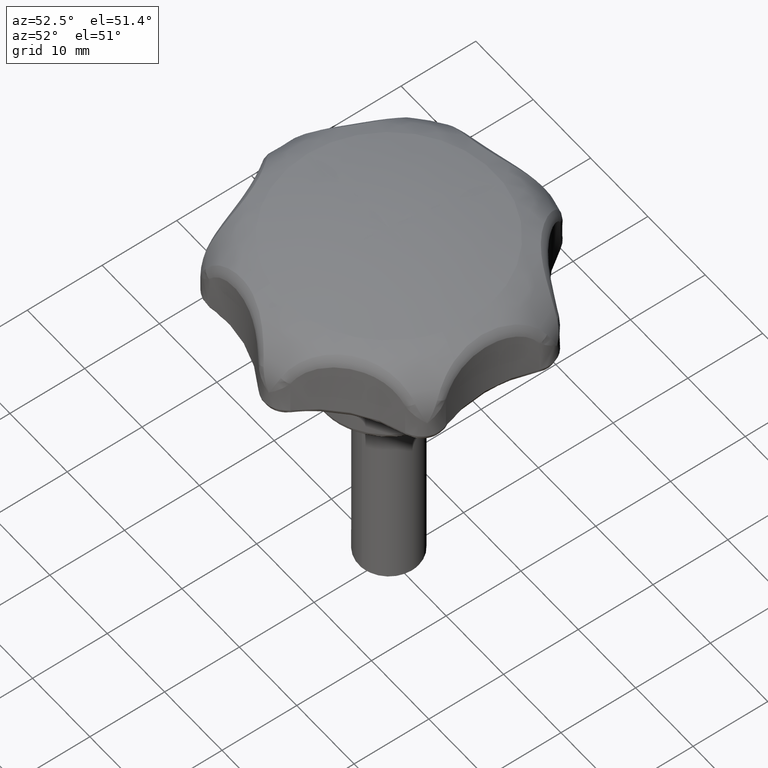
[diagram: clean part render]
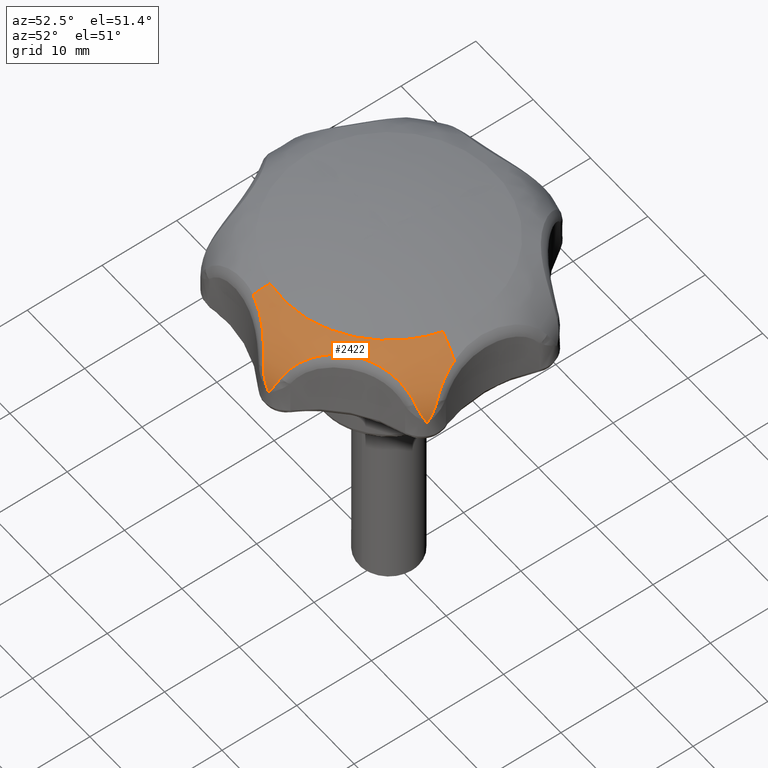
[diagram: same view with one face highlighted and labeled with its STEP entity id]
A machine part, auxiliary view. The second image highlights one B-rep face of the part: STEP entity #2422.
In plain terms, the highlighted face is a freeform B-spline surface patch.
Its self-contained STEP definition (entity closure, byte-faithful):
#2146=CARTESIAN_POINT('',(-3.608263851528442,-19.657309777967662,15.707092098251394));
#2147=CARTESIAN_POINT('',(14.955183679261204,-23.064786052272904,15.707092098251387));
#2148=CARTESIAN_POINT('',(19.418769281341280,-4.726605053023355,15.707092098251392));
#2149=CARTESIAN_POINT('',(-3.683840723773852,-20.069041860461731,22.483364275251919));
#2150=CARTESIAN_POINT('',(15.268427403346235,-23.547889411829580,22.483364275251912));
#2151=CARTESIAN_POINT('',(19.825505015070210,-4.825606135246191,22.483364275251926));
#2152=CARTESIAN_POINT('',(-2.473979172543481,-13.477887698907365,23.572410478883256));
#2153=CARTESIAN_POINT('',(10.253910042743104,-15.814198368094230,23.572410478883256));
#2154=CARTESIAN_POINT('',(13.314334188203913,-3.240761468445617,23.572410478883249));
#2162=(BOUNDED_SURFACE()B_SPLINE_SURFACE(2,2,((#2146,#2149,#2152),(#2147,#2150,#2153),(#2148,#2151,#2154)),.UNSPECIFIED.,.F.,.F.,.U.)B_SPLINE_SURFACE_WITH_KNOTS((3,3),(3,3),(0.0,31.780178791469591),(0.0,11.561657686267720),.UNSPECIFIED.)GEOMETRIC_REPRESENTATION_ITEM()RATIONAL_B_SPLINE_SURFACE(((0.893558079622955,0.662885695141181,0.894727010632211),(0.657090397072748,0.487462241758206,0.657949986794488),(0.914120498790946,0.678139917373394,0.915316329058279)))REPRESENTATION_ITEM('')SURFACE());
#2163=CARTESIAN_POINT('',(-2.555872080191708,-13.924026211694240,23.484274901219809));
#2164=VERTEX_POINT('',#2163);
#2165=CARTESIAN_POINT('',(13.755059415906590,-3.348035727709375,23.484274579114441));
#2166=VERTEX_POINT('',#2165);
#2167=CARTESIAN_POINT('',(-2.555872080191707,-13.924026211694233,23.484274901219809));
#2168=CARTESIAN_POINT('',(-1.288522058761201,-14.156659255858118,23.484275067383390));
#2169=CARTESIAN_POINT('',(0.000001978750909,-14.156659255858120,23.484275026593110));
#2170=CARTESIAN_POINT('',(11.124198166573278,-14.156659255858116,23.484274674438943));
#2171=CARTESIAN_POINT('',(13.755059415906590,-3.348035727709375,23.484274579114441));
#2179=(BOUNDED_CURVE()B_SPLINE_CURVE(2,(#2167,#2168,#2169,#2170,#2171),.UNSPECIFIED.,.F.,.U.)B_SPLINE_CURVE_WITH_KNOTS((3,2,3),(0.218989093635942,0.250000000000000,0.459598322152084),.UNSPECIFIED.)CURVE()GEOMETRIC_REPRESENTATION_ITEM()RATIONAL_B_SPLINE_CURVE((0.936350317603224,0.963668463266834,1.0,0.754440291067909,0.920631805978381))REPRESENTATION_ITEM(''));
#2180=EDGE_CURVE('',#2164,#2166,#2179,.T.);
#2181=ORIENTED_EDGE('',*,*,#2180,.F.);
#2182=CARTESIAN_POINT('',(-2.918604667190907,-15.900141547597050,22.712634018882738));
#2183=VERTEX_POINT('',#2182);
#2184=CARTESIAN_POINT('',(-2.918604667190908,-15.900141547597054,22.712634018882738));
#2185=CARTESIAN_POINT('',(-2.747337455134375,-14.967102233585980,23.244096928042421));
#2186=CARTESIAN_POINT('',(-2.555872080191708,-13.924026211694235,23.484274901219813));
#2194=(BOUNDED_CURVE()B_SPLINE_CURVE(2,(#2184,#2185,#2186),.UNSPECIFIED.,.F.,.U.)B_SPLINE_CURVE_WITH_KNOTS((3,3),(-0.611580639836054,-0.305029398662401),.UNSPECIFIED.)CURVE()GEOMETRIC_REPRESENTATION_ITEM()RATIONAL_B_SPLINE_CURVE((0.808535295945708,0.832229409157747,0.874623568141432))REPRESENTATION_ITEM(''));
#2195=EDGE_CURVE('',#2183,#2164,#2194,.T.);
#2196=ORIENTED_EDGE('',*,*,#2195,.F.);
#2197=CARTESIAN_POINT('',(3.158748914194025,-19.179017135818949,19.019535139655350));
#2198=VERTEX_POINT('',#2197);
#2199=CARTESIAN_POINT('',(-2.918604667190907,-15.900141547597050,22.712634018882738));
#2200=CARTESIAN_POINT('',(-2.787744561478905,-15.937099823268330,22.705495744559219));
#2201=CARTESIAN_POINT('',(-2.657325472703950,-15.976034652758051,22.696211151348621));
#2202=CARTESIAN_POINT('',(-2.439026849089256,-16.044730214268590,22.676920291596922));
#2203=CARTESIAN_POINT('',(-2.350910581434238,-16.073429708954279,22.668088244434280));
#2204=CARTESIAN_POINT('',(-2.175079610622071,-16.132630436035580,22.648289961091930));
#2205=CARTESIAN_POINT('',(-2.087272116091138,-16.163165920032050,22.637309786526451));
#2206=CARTESIAN_POINT('',(-1.825401792778535,-16.257105079454501,22.601159392779518));
#2207=CARTESIAN_POINT('',(-1.652764592144871,-16.322875234106149,22.572783174442201));
#2208=CARTESIAN_POINT('',(-1.311318834190951,-16.460277592403720,22.506855747539859));
#2209=CARTESIAN_POINT('',(-1.142364713451149,-16.531990093905652,22.469243155446279));
#2210=CARTESIAN_POINT('',(-0.811065886214016,-16.679511069417678,22.384794809329168));
#2211=CARTESIAN_POINT('',(-0.648371504238408,-16.755452056320198,22.337902032153771));
#2212=CARTESIAN_POINT('',(-0.169010335136240,-16.988803068028790,22.182253657527170));
#2213=CARTESIAN_POINT('',(0.138966226981267,-17.151744305284431,22.058613046550470));
#2214=CARTESIAN_POINT('',(0.583553075956227,-17.403146922703069,21.838049683009270));
#2215=CARTESIAN_POINT('',(0.728844759204971,-17.488112646046279,21.758658430035450));
#2216=CARTESIAN_POINT('',(0.942349891317901,-17.616782797674858,21.629882195730161));
#2217=CARTESIAN_POINT('',(1.012803136559707,-17.659894378815991,21.585313046283911));
#2218=CARTESIAN_POINT('',(1.151066033394439,-17.745710714570841,21.493571924798871));
#2219=CARTESIAN_POINT('',(1.219023348588754,-17.788503395313040,21.446314391757969));
#2220=CARTESIAN_POINT('',(1.552999562617645,-18.001628462365058,21.202964492699280));
#2221=CARTESIAN_POINT('',(1.801664576348496,-18.169451956398849,20.985775521872100));
#2222=CARTESIAN_POINT('',(2.147161041262229,-18.412197720540831,20.622828147314809));
#2223=CARTESIAN_POINT('',(2.257728256597388,-18.491614181450849,20.495634936022849));
#2224=CARTESIAN_POINT('',(2.416553208430022,-18.607818353042880,20.294886219507550));
#2225=CARTESIAN_POINT('',(2.468229629468940,-18.645999111546249,20.226410886107580));
#2226=CARTESIAN_POINT('',(2.568372593123486,-18.720637569166652,20.087257198012800));
#2227=CARTESIAN_POINT('',(2.616944044743691,-18.757171820464031,20.016448385070792));
#2228=CARTESIAN_POINT('',(2.852406199761373,-18.935717654328791,19.656215720129651));
#2229=CARTESIAN_POINT('',(3.017272277135398,-19.065415527216999,19.348348343613839));
#2230=CARTESIAN_POINT('',(3.158748914194025,-19.179017135818949,19.019535139655350));
#2231=B_SPLINE_CURVE_WITH_KNOTS('',3,(#2199,#2200,#2201,#2202,#2203,#2204,#2205,#2206,#2207,#2208,#2209,#2210,#2211,#2212,#2213,#2214,#2215,#2216,#2217,#2218,#2219,#2220,#2221,#2222,#2223,#2224,#2225,#2226,#2227,#2228,#2229,#2230),.UNSPECIFIED.,.F.,.U.,(4,2,2,2,2,2,2,2,2,2,2,2,2,2,2,4),(0.539504374545257,0.562499999999996,0.578124999999996,0.593749999999996,0.624999999999996,0.656249999999996,0.687499999999996,0.749999999999996,0.781249999999996,0.796874999999997,0.812499999999997,0.874999999999998,0.906249999999998,0.921874999999998,0.937499999999999,1.0),.UNSPECIFIED.);
#2232=EDGE_CURVE('',#2183,#2198,#2231,.T.);
#2233=ORIENTED_EDGE('',*,*,#2232,.T.);
#2234=CARTESIAN_POINT('',(4.450418747081270,-19.498558488588301,16.169530556264149));
#2235=VERTEX_POINT('',#2234);
#2236=CARTESIAN_POINT('',(3.158748914194025,-19.179017135818949,19.019535139655350));
#2237=CARTESIAN_POINT('',(3.258991068686828,-19.259508154862559,18.786557542910089));
#2238=CARTESIAN_POINT('',(3.363240184241490,-19.325122442310779,18.553113846558631));
#2239=CARTESIAN_POINT('',(3.576172497625830,-19.429497355826491,18.084112743819318));
#2240=CARTESIAN_POINT('',(3.684878788467952,-19.468237309529560,17.848562656556560));
#2241=CARTESIAN_POINT('',(3.903997914797449,-19.520239241768039,17.374320386832188));
#2242=CARTESIAN_POINT('',(4.014424653443730,-19.533493733532922,17.135633373431101));
#2243=CARTESIAN_POINT('',(4.179489669424025,-19.534510076678458,16.774440384074889));
#2244=CARTESIAN_POINT('',(4.234471478158340,-19.531683192166991,16.653389939793449));
#2245=CARTESIAN_POINT('',(4.316100668180884,-19.522752412296668,16.471942541338130));
#2246=CARTESIAN_POINT('',(4.343186857371458,-19.518994915208889,16.411445374505849));
#2247=CARTESIAN_POINT('',(4.383598926287699,-19.512195598028129,16.320662836089429));
#2248=CARTESIAN_POINT('',(4.397034815956761,-19.509734971496581,16.290394314778670));
#2249=CARTESIAN_POINT('',(4.423814578534252,-19.504430033767779,16.229853413352881));
#2250=CARTESIAN_POINT('',(4.437068441427101,-19.501605348281149,16.199319634614270));
#2251=CARTESIAN_POINT('',(4.450418747081270,-19.498558488588301,16.169530556264149));
#2252=B_SPLINE_CURVE_WITH_KNOTS('',3,(#2236,#2237,#2238,#2239,#2240,#2241,#2242,#2243,#2244,#2245,#2246,#2247,#2248,#2249,#2250,#2251),.UNSPECIFIED.,.F.,.U.,(4,2,2,2,2,2,2,4),(0.0,0.250000000000002,0.500000000000003,0.750000000000005,0.875000000000004,0.937500000000003,0.968750000000002,1.0),.UNSPECIFIED.);
#2253=EDGE_CURVE('',#2198,#2235,#2252,.T.);
#2254=ORIENTED_EDGE('',*,*,#2253,.T.);
#2255=CARTESIAN_POINT('',(5.475528950280280,-18.650227260420351,19.019535067539351));
#2256=VERTEX_POINT('',#2255);
#2257=CARTESIAN_POINT('',(4.450418747081270,-19.498558488588301,16.169530556264149));
#2258=CARTESIAN_POINT('',(4.463768938970792,-19.495511133937342,16.199319632929178));
#2259=CARTESIAN_POINT('',(4.476935841199341,-19.492305452202672,16.229853409998221));
#2260=CARTESIAN_POINT('',(4.503365298337773,-19.485465732810120,16.290394308098339));
#2261=CARTESIAN_POINT('',(4.516538241759252,-19.481853066878070,16.320662827740058));
#2262=CARTESIAN_POINT('',(4.555898368754852,-19.470444901122221,16.411445361160489));
#2263=CARTESIAN_POINT('',(4.581932497452255,-19.462078032528439,16.471942524684120));
#2264=CARTESIAN_POINT('',(4.659352772442626,-19.434706810867340,16.653389913275522));
#2265=CARTESIAN_POINT('',(4.710116206855891,-19.413398034697661,16.774440350625799));
#2266=CARTESIAN_POINT('',(4.858393664345337,-19.340863321064859,17.135633318155790));
#2267=CARTESIAN_POINT('',(4.952133804896449,-19.281009075813770,17.374320317642209));
#2268=CARTESIAN_POINT('',(5.126990515917164,-19.139084741148800,17.848562560601259));
#2269=CARTESIAN_POINT('',(5.208122861083732,-19.057015364728159,18.084112635014780));
#2270=CARTESIAN_POINT('',(5.354681665916645,-18.870588966425260,18.553113712961459));
#2271=CARTESIAN_POINT('',(5.420137901061447,-18.766240550015361,18.786557397371350));
#2272=CARTESIAN_POINT('',(5.475528950280280,-18.650227260420351,19.019535067539351));
#2273=B_SPLINE_CURVE_WITH_KNOTS('',3,(#2257,#2258,#2259,#2260,#2261,#2262,#2263,#2264,#2265,#2266,#2267,#2268,#2269,#2270,#2271,#2272),.UNSPECIFIED.,.F.,.U.,(4,2,2,2,2,2,2,4),(0.0,0.031250000000000,0.062499999999999,0.125000000000000,0.250000000000000,0.500000000000000,0.750000000000000,1.0),.UNSPECIFIED.);
#2274=EDGE_CURVE('',#2235,#2256,#2273,.T.);
#2275=ORIENTED_EDGE('',*,*,#2274,.T.);
#2276=CARTESIAN_POINT('',(16.964206244606348,-9.488312651027531,19.019536550120652));
#2277=VERTEX_POINT('',#2276);
#2278=CARTESIAN_POINT('',(5.475528950280280,-18.650227260420351,19.019535067539351));
#2279=CARTESIAN_POINT('',(5.553764368837355,-18.486367246193801,19.348598608730040));
#2280=CARTESIAN_POINT('',(5.645782987676067,-18.298527507510659,19.655301316713281));
#2281=CARTESIAN_POINT('',(5.806042949582052,-17.985451188917072,20.084583846060330));
#2282=CARTESIAN_POINT('',(5.863190624353697,-17.875843733898989,20.222520132009510));
#2283=CARTESIAN_POINT('',(5.954892362057599,-17.703943294996620,20.421819700926068));
#2284=CARTESIAN_POINT('',(5.986457630201150,-17.645393901603128,20.486984178750721));
#2285=CARTESIAN_POINT('',(6.051665254439676,-17.525850036928119,20.614784092157048));
#2286=CARTESIAN_POINT('',(6.085376495384684,-17.464732549285859,20.677539449137619));
#2287=CARTESIAN_POINT('',(6.258517511463269,-17.154650802851510,20.983529884550340));
#2288=CARTESIAN_POINT('',(6.410375038517116,-16.894486155751260,21.201532610416130));
#2289=CARTESIAN_POINT('',(6.659961517573313,-16.490910846522912,21.493273388846550));
#2290=CARTESIAN_POINT('',(6.746802500416457,-16.354152129686941,21.584617130383059));
#2291=CARTESIAN_POINT('',(6.882862325939552,-16.146195980481370,21.713213501154360));
#2292=CARTESIAN_POINT('',(6.929182731350588,-16.076407304135270,21.754674781924241));
#2293=CARTESIAN_POINT('',(7.023821919152435,-15.935976477155471,21.834851200597861));
#2294=CARTESIAN_POINT('',(7.072039160591609,-15.865489199285220,21.873472534174599));
#2295=CARTESIAN_POINT('',(7.316362197867349,-15.513831292957960,22.058557628312069));
#2296=CARTESIAN_POINT('',(7.523381252451058,-15.233187798347791,22.182154045349790));
#2297=CARTESIAN_POINT('',(7.962360146367631,-14.677811323559240,22.388961330986859));
#2298=CARTESIAN_POINT('',(8.194322771701996,-14.403073386781850,22.472151980560501));
#2299=CARTESIAN_POINT('',(8.562850431148913,-13.998396926638620,22.570745749911751));
#2300=CARTESIAN_POINT('',(8.689128597816852,-13.864739501433920,22.599223288144380));
#2301=CARTESIAN_POINT('',(8.883978706769188,-13.666443051784990,22.635665447123490));
#2302=CARTESIAN_POINT('',(8.949743543915746,-13.600806120915880,22.646744490957129));
#2303=CARTESIAN_POINT('',(9.082231925450635,-13.471165046451061,22.666732583631489));
#2304=CARTESIAN_POINT('',(9.149053302701592,-13.407060733247580,22.675660489147099));
#2305=CARTESIAN_POINT('',(9.486067019371294,-13.090147142948700,22.715166197984988));
#2306=CARTESIAN_POINT('',(10.043928532848620,-12.606222556225219,22.745866945159982));
#2307=CARTESIAN_POINT('',(10.639596888890440,-12.169248210545360,22.715955980434479));
#2308=CARTESIAN_POINT('',(11.023570710443311,-11.910639075813840,22.676932180754051));
#2309=CARTESIAN_POINT('',(11.100948407081550,-11.859640796325630,22.668100002744289));
#2310=CARTESIAN_POINT('',(11.256862082448530,-11.759081557024761,22.648301456384662));
#2311=CARTESIAN_POINT('',(11.335482695351059,-11.709469404924301,22.637321149434030));
#2312=CARTESIAN_POINT('',(11.572200571873189,-11.563300887417009,22.601170356012030));
#2313=CARTESIAN_POINT('',(11.731259153165171,-11.469334599923510,22.572793869926372));
#2314=CARTESIAN_POINT('',(12.051572325284249,-11.288050303412970,22.506865905596801));
#2315=CARTESIAN_POINT('',(12.212980460266380,-11.200668548905149,22.469253041928880));
#2316=CARTESIAN_POINT('',(12.534878191112270,-11.033626281870699,22.384804153259989));
#2317=CARTESIAN_POINT('',(12.695689406051249,-10.953775003477251,22.337911105305420));
#2318=CARTESIAN_POINT('',(13.177006987996499,-10.724486965632630,22.182261920934341));
#2319=CARTESIAN_POINT('',(13.496419560760780,-10.585293150086899,22.058620773472288));
#2320=CARTESIAN_POINT('',(13.970169009188441,-10.394447752793100,21.838056616070752));
#2321=CARTESIAN_POINT('',(14.127185635424411,-10.333829278389420,21.758665100310889));
#2322=CARTESIAN_POINT('',(14.360902081057381,-10.247128583773311,21.629888475643011));
#2323=CARTESIAN_POINT('',(14.438534892362870,-10.218925584026611,21.585319192346660));
#2324=CARTESIAN_POINT('',(14.591834193951470,-10.164332777305010,21.493577804721848));
#2325=CARTESIAN_POINT('',(14.667661493408930,-10.137882343462021,21.446320139735640));
#2326=CARTESIAN_POINT('',(15.042519852625970,-10.009650204966800,21.202969586861531));
#2327=CARTESIAN_POINT('',(15.328769414925780,-9.919872048818952,20.985780111687351));
#2328=CARTESIAN_POINT('',(15.733968885523030,-9.801101163240286,20.622832016367671));
#2329=CARTESIAN_POINT('',(15.864996597087520,-9.764171460753692,20.495638570819199));
#2330=CARTESIAN_POINT('',(16.054874254794811,-9.712449041084508,20.294889513418120));
#2331=CARTESIAN_POINT('',(16.116944853062002,-9.695852036613067,20.226414057097639));
#2332=CARTESIAN_POINT('',(16.237737578438139,-9.664093304638721,20.087260132064021));
#2333=CARTESIAN_POINT('',(16.296584968527370,-9.648897284659185,20.016451202407278));
#2334=CARTESIAN_POINT('',(16.582985767823079,-9.576126753402635,19.656217962753921));
#2335=CARTESIAN_POINT('',(16.787179817652589,-9.528094325210084,19.348350154545201));
#2336=CARTESIAN_POINT('',(16.964206244606348,-9.488312651027531,19.019536550120652));
#2337=B_SPLINE_CURVE_WITH_KNOTS('',3,(#2278,#2279,#2280,#2281,#2282,#2283,#2284,#2285,#2286,#2287,#2288,#2289,#2290,#2291,#2292,#2293,#2294,#2295,#2296,#2297,#2298,#2299,#2300,#2301,#2302,#2303,#2304,#2305,#2306,#2307,#2308,#2309,#2310,#2311,#2312,#2313,#2314,#2315,#2316,#2317,#2318,#2319,#2320,#2321,#2322,#2323,#2324,#2325,#2326,#2327,#2328,#2329,#2330,#2331,#2332,#2333,#2334,#2335,#2336),.UNSPECIFIED.,.F.,.U.,(4,2,2,2,2,2,2,2,2,2,2,2,2,2,1,2,2,2,2,2,2,2,2,2,2,2,2,2,2,4),(0.0,0.062499999999999,0.093749999999998,0.109374999999998,0.124999999999998,0.187499999999996,0.218749999999996,0.234374999999996,0.249999999999996,0.312499999999997,0.374999999999998,0.406249999999998,0.421874999999999,0.437499999999999,0.500000000000000,0.562500000000001,0.578125000000001,0.593750000000002,0.625000000000001,0.656250000000001,0.687500000000001,0.750000000000001,0.781250000000002,0.796875000000002,0.812500000000001,0.875000000000000,0.906250000000000,0.921874999999999,0.937499999999999,1.0),.UNSPECIFIED.);
#2338=EDGE_CURVE('',#2256,#2277,#2337,.T.);
#2339=ORIENTED_EDGE('',*,*,#2338,.T.);
#2340=CARTESIAN_POINT('',(18.019376769780202,-8.677675438200922,16.169530556264149));
#2341=VERTEX_POINT('',#2340);
#2342=CARTESIAN_POINT('',(16.964206244606348,-9.488312651027531,19.019536550120652));
#2343=CARTESIAN_POINT('',(17.089636912263710,-9.460125016679445,18.786559064833892));
#2344=CARTESIAN_POINT('',(17.205934620279859,-9.419529499222486,18.553115356964671));
#2345=CARTESIAN_POINT('',(17.420299640935070,-9.318128658465344,18.084114278788849));
#2346=CARTESIAN_POINT('',(17.518365184559880,-9.257292401418562,17.848564223035400));
#2347=CARTESIAN_POINT('',(17.695640949625840,-9.118400059693682,17.374322159309560));
#2348=CARTESIAN_POINT('',(17.774853906799009,-9.040328601895235,17.135635245646039));
#2349=CARTESIAN_POINT('',(17.878566011293550,-8.911906988355300,16.774443150657010));
#2350=CARTESIAN_POINT('',(17.910636842996770,-8.867157180521565,16.653392991554298));
#2351=CARTESIAN_POINT('',(17.954551579674551,-8.797764253360725,16.471947689884381));
#2352=CARTESIAN_POINT('',(17.968502522280389,-8.774243190188772,16.411451222659391));
#2353=CARTESIAN_POINT('',(17.988387333202009,-8.738399705426607,16.320673004095259));
#2354=CARTESIAN_POINT('',(17.994842081997088,-8.726358015242417,16.290405915328080));
#2355=CARTESIAN_POINT('',(18.007402664589851,-8.702089839729769,16.229876652797671));
#2356=CARTESIAN_POINT('',(18.013617736492719,-8.689634758453339,16.199509084126358));
#2357=CARTESIAN_POINT('',(18.019376769780202,-8.677675438200922,16.169530556264149));
#2358=B_SPLINE_CURVE_WITH_KNOTS('',3,(#2342,#2343,#2344,#2345,#2346,#2347,#2348,#2349,#2350,#2351,#2352,#2353,#2354,#2355,#2356,#2357),.UNSPECIFIED.,.F.,.U.,(4,2,2,2,2,2,2,4),(0.0,0.250000000000000,0.500000000000001,0.750000000000001,0.875000000000002,0.937500000000001,0.968750000000001,1.0),.UNSPECIFIED.);
#2359=EDGE_CURVE('',#2277,#2341,#2358,.T.);
#2360=ORIENTED_EDGE('',*,*,#2359,.T.);
#2361=CARTESIAN_POINT('',(17.995269838698398,-7.347285812435170,19.019538121522299));
#2362=VERTEX_POINT('',#2361);
#2363=CARTESIAN_POINT('',(18.019376769780202,-8.677675438200922,16.169530556264149));
#2364=CARTESIAN_POINT('',(18.025136248138111,-8.665716325153625,16.199509098613031));
#2365=CARTESIAN_POINT('',(18.030998992676970,-8.653091564442608,16.229876681984081));
#2366=CARTESIAN_POINT('',(18.042141228290241,-8.628140334367833,16.290405973673671));
#2367=CARTESIAN_POINT('',(18.047531334134611,-8.615585931801336,16.320673077048610));
#2368=CARTESIAN_POINT('',(18.063156931834271,-8.577691295984991,16.411451339367300));
#2369=CARTESIAN_POINT('',(18.072848174850211,-8.552118854915706,16.471947835640719));
#2370=CARTESIAN_POINT('',(18.099721374693161,-8.474519112240241,16.653393224131360));
#2371=CARTESIAN_POINT('',(18.114712354425361,-8.421544051055097,16.774443442867160));
#2372=CARTESIAN_POINT('',(18.150452989528169,-8.260389011819495,17.135635720362419));
#2373=CARTESIAN_POINT('',(18.162103238974929,-8.149781011501728,17.374322751244460));
#2374=CARTESIAN_POINT('',(18.160163980642050,-7.924583159733341,17.848565042197350));
#2375=CARTESIAN_POINT('',(18.146584786375289,-7.809981584386152,18.084115207947040));
#2376=CARTESIAN_POINT('',(18.092208665245671,-7.579161754640999,18.553116500298099));
#2377=CARTESIAN_POINT('',(18.051437026394840,-7.462925596384534,18.786560312328412));
#2378=CARTESIAN_POINT('',(17.995269838698398,-7.347285812435170,19.019538121522299));
#2379=B_SPLINE_CURVE_WITH_KNOTS('',3,(#2363,#2364,#2365,#2366,#2367,#2368,#2369,#2370,#2371,#2372,#2373,#2374,#2375,#2376,#2377,#2378),.UNSPECIFIED.,.F.,.U.,(4,2,2,2,2,2,2,4),(0.0,0.031250000000000,0.062500000000000,0.125000000000000,0.250000000000000,0.500000000000000,0.750000000000000,1.0),.UNSPECIFIED.);
#2380=EDGE_CURVE('',#2341,#2362,#2379,.T.);
#2381=ORIENTED_EDGE('',*,*,#2380,.T.);
#2382=CARTESIAN_POINT('',(16.727859375144970,-4.071626966035197,22.001084314671921));
#2383=VERTEX_POINT('',#2382);
#2384=CARTESIAN_POINT('',(17.995269838698398,-7.347285812435170,19.019538121522299));
#2385=CARTESIAN_POINT('',(17.915937762680400,-7.183953409820622,19.348601135845819));
#2386=CARTESIAN_POINT('',(17.826451142734271,-6.994894039053022,19.655303365561920));
#2387=CARTESIAN_POINT('',(17.681598268627770,-6.674397622068738,20.084585210442860));
#2388=CARTESIAN_POINT('',(17.631534569582961,-6.561378563241802,20.222521265788501));
#2389=CARTESIAN_POINT('',(17.554312297495549,-6.382504976890357,20.421820485543929));
#2390=CARTESIAN_POINT('',(17.528217096658949,-6.321321270988605,20.486984846439320));
#2391=CARTESIAN_POINT('',(17.475410100358861,-6.195805447226743,20.614784524978369));
#2392=CARTESIAN_POINT('',(17.448645076078900,-6.131342774426999,20.677539762973272));
#2393=CARTESIAN_POINT('',(17.314164743911089,-5.802642695186381,20.983529618423191));
#2394=CARTESIAN_POINT('',(17.205441211326939,-5.521705571031056,21.201531886653900));
#2395=CARTESIAN_POINT('',(17.045527611363891,-5.074945751980883,21.493271990638320));
#2396=CARTESIAN_POINT('',(16.992749697289732,-4.921783022210894,21.584615509370920));
#2397=CARTESIAN_POINT('',(16.914994784310188,-4.685748559861368,21.713211549333678));
#2398=CARTESIAN_POINT('',(16.889312047041340,-4.606021258685892,21.754672720400599));
#2399=CARTESIAN_POINT('',(16.838525268421950,-4.444472131907972,21.834848920867920));
#2400=CARTESIAN_POINT('',(16.813478999814802,-4.362826249264014,21.873470149326629));
#2401=CARTESIAN_POINT('',(16.768239032761969,-4.211438628437486,21.941764670615139));
#2402=CARTESIAN_POINT('',(16.747865430976280,-4.141721629096632,21.971950310366079));
#2403=CARTESIAN_POINT('',(16.727859375144970,-4.071626966035197,22.001084314671921));
#2404=B_SPLINE_CURVE_WITH_KNOTS('',3,(#2384,#2385,#2386,#2387,#2388,#2389,#2390,#2391,#2392,#2393,#2394,#2395,#2396,#2397,#2398,#2399,#2400,#2401,#2402,#2403),.UNSPECIFIED.,.F.,.U.,(4,2,2,2,2,2,2,2,2,4),(0.0,0.062499999999999,0.093749999999998,0.109374999999998,0.124999999999998,0.187499999999998,0.218749999999997,0.234374999999997,0.249999999999997,0.263202413710242),.UNSPECIFIED.);
#2405=EDGE_CURVE('',#2362,#2383,#2404,.T.);
#2406=ORIENTED_EDGE('',*,*,#2405,.T.);
#2407=CARTESIAN_POINT('',(16.727859375144966,-4.071626966035197,22.001084314671921));
#2408=CARTESIAN_POINT('',(15.409158188398800,-3.750649894654364,23.098715307109856));
#2409=CARTESIAN_POINT('',(13.755059415906594,-3.348035727709375,23.484274579114441));
#2417=(BOUNDED_CURVE()B_SPLINE_CURVE(2,(#2407,#2408,#2409),.UNSPECIFIED.,.F.,.U.)B_SPLINE_CURVE_WITH_KNOTS((3,3),(-0.783102013579463,-0.305029484415315),.UNSPECIFIED.)CURVE()GEOMETRIC_REPRESENTATION_ITEM()RATIONAL_B_SPLINE_CURVE((0.806005381889881,0.827114324440198,0.894750234435221))REPRESENTATION_ITEM(''));
#2418=EDGE_CURVE('',#2383,#2166,#2417,.T.);
#2419=ORIENTED_EDGE('',*,*,#2418,.T.);
#2420=EDGE_LOOP('',(#2181,#2196,#2233,#2254,#2275,#2339,#2360,#2381,#2406,#2419));
#2421=FACE_OUTER_BOUND('',#2420,.T.);
#2422=ADVANCED_FACE('',(#2421),#2162,.T.);